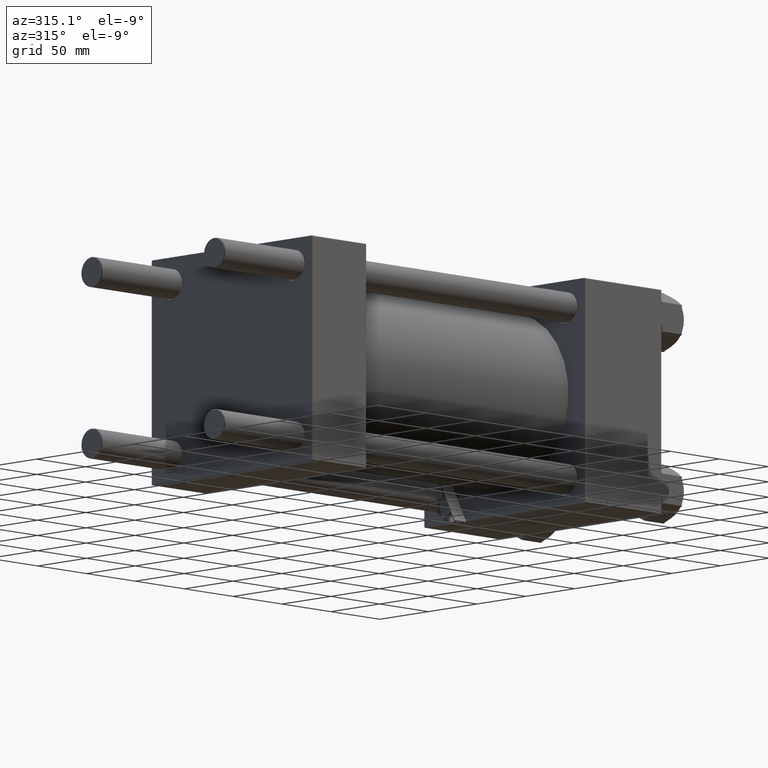
[diagram: clean part render]
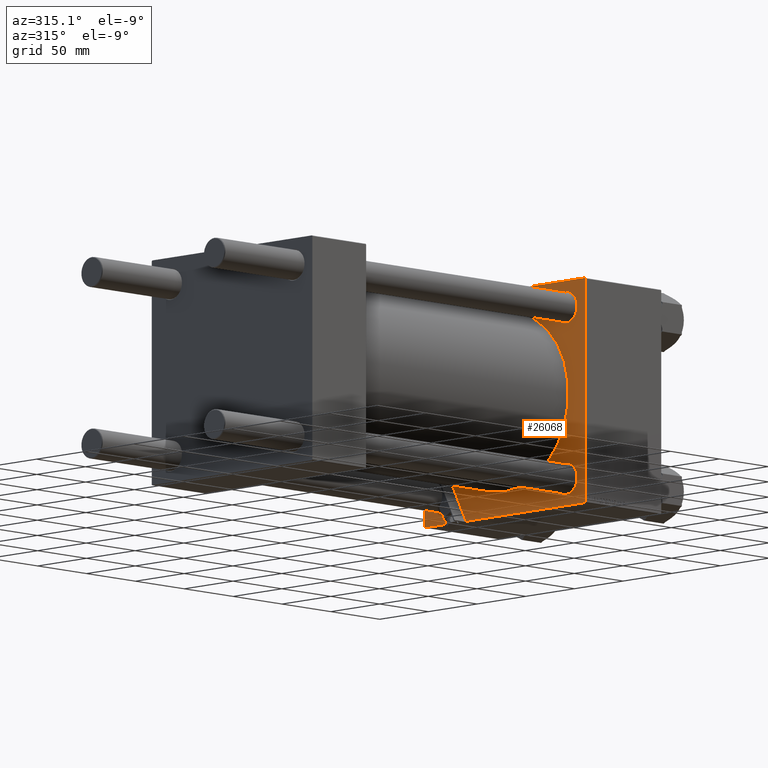
[diagram: same view with one face highlighted and labeled with its STEP entity id]
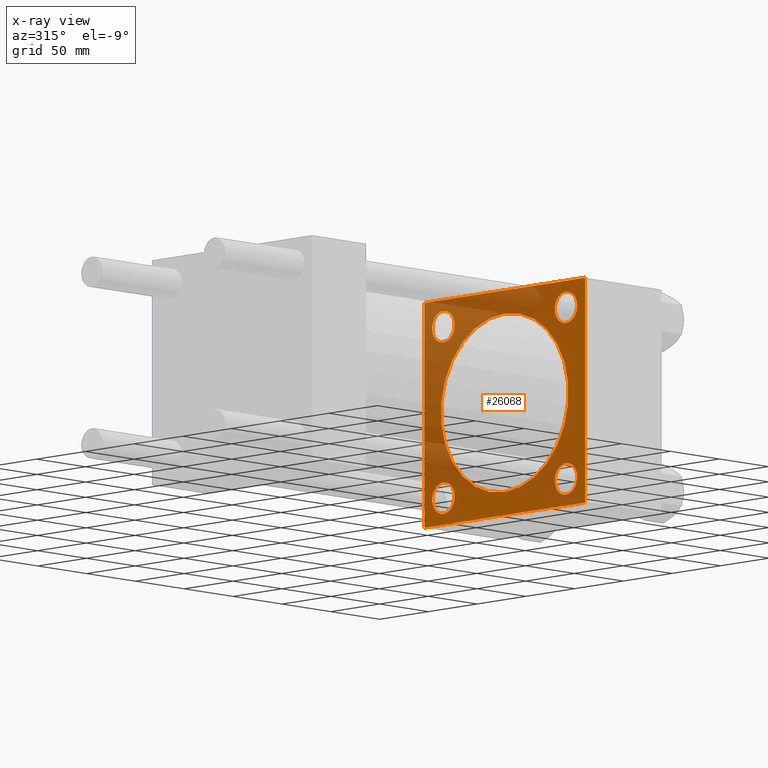
[diagram: x-ray of the same camera — body ghosted, the highlighted face saturated]
A machine part, auxiliary view. The second image highlights one B-rep face of the part: STEP entity #26068.
The next image is the same camera in x-ray: the body ghosted, the highlighted face saturated — about 42% of this face is hidden behind the body in this view.
In plain terms, the highlighted planar face has unit normal (-1, 0, 0).
Its self-contained STEP definition (entity closure, byte-faithful):
#691 = ORIENTED_EDGE ( 'NONE', *, *, #24537, .T. ) ;
#708 = DIRECTION ( 'NONE',  ( 0.000000000000000000, 0.000000000000000000, 1.000000000000000000 ) ) ;
#763 = AXIS2_PLACEMENT_3D ( 'NONE', #25018, #41656, #49210 ) ;
#844 = CARTESIAN_POINT ( 'NONE',  ( 279.0000000000000000, 62.95000000000000284, 62.95000000000000284 ) ) ;
#1361 = EDGE_CURVE ( 'NONE', #11330, #50882, #49885, .T. ) ;
#1504 = VERTEX_POINT ( 'NONE', #16476 ) ;
#1809 = DIRECTION ( 'NONE',  ( 0.000000000000000000, -1.000000000000000000, -1.682156097916904081E-16 ) ) ;
#1831 = ORIENTED_EDGE ( 'NONE', *, *, #12929, .T. ) ;
#2351 = DIRECTION ( 'NONE',  ( 1.000000000000000000, 0.000000000000000000, -0.000000000000000000 ) ) ;
#2711 = DIRECTION ( 'NONE',  ( 1.000000000000000000, 0.000000000000000000, -0.000000000000000000 ) ) ;
#2964 = CARTESIAN_POINT ( 'NONE',  ( 279.0000000000000000, 62.95000000000000284, 62.95000000000000284 ) ) ;
#3255 = VERTEX_POINT ( 'NONE', #5039 ) ;
#3263 = CIRCLE ( 'NONE', #763, 11.50000000000001066 ) ;
#3282 = CARTESIAN_POINT ( 'NONE',  ( 279.0000000000000000, 0.000000000000000000, 65.50000000000001421 ) ) ;
#3416 = CARTESIAN_POINT ( 'NONE',  ( 279.0000000000000000, -81.99999999999998579, -82.50000000000002842 ) ) ;
#3629 = ORIENTED_EDGE ( 'NONE', *, *, #35198, .T. ) ;
#3731 = FACE_BOUND ( 'NONE', #9669, .T. ) ;
#4278 = EDGE_LOOP ( 'NONE', ( #20706, #43881, #17892, #9269, #13678, #1831, #44053, #17026 ) ) ;
#5039 = CARTESIAN_POINT ( 'NONE',  ( 279.0000000000000000, -81.99999999999995737, 82.49999999999997158 ) ) ;
#5078 = CARTESIAN_POINT ( 'NONE',  ( 279.0000000000000000, 82.50000000000001421, 82.00000000000000000 ) ) ;
#5953 = DIRECTION ( 'NONE',  ( 1.000000000000000000, 0.000000000000000000, 0.000000000000000000 ) ) ;
#6094 = VECTOR ( 'NONE', #21533, 1000.000000000000000 ) ;
#6279 = EDGE_LOOP ( 'NONE', ( #691, #18690 ) ) ;
#6826 = DIRECTION ( 'NONE',  ( 1.000000000000000000, 0.000000000000000000, -0.000000000000000000 ) ) ;
#7055 = CARTESIAN_POINT ( 'NONE',  ( 279.0000000000000000, -62.94999999999998153, 74.45000000000003126 ) ) ;
#7365 = PLANE ( 'NONE',  #30069 ) ;
#7705 = CARTESIAN_POINT ( 'NONE',  ( 279.0000000000000000, -82.49999999999997158, 81.99999999999997158 ) ) ;
#8414 = AXIS2_PLACEMENT_3D ( 'NONE', #14183, #21721, #29266 ) ;
#8683 = VERTEX_POINT ( 'NONE', #7055 ) ;
#8879 = AXIS2_PLACEMENT_3D ( 'NONE', #33553, #2351, #29127 ) ;
#9135 = CIRCLE ( 'NONE', #49007, 65.50000000000001421 ) ;
#9269 = ORIENTED_EDGE ( 'NONE', *, *, #40058, .T. ) ;
#9296 = AXIS2_PLACEMENT_3D ( 'NONE', #36322, #36575, #708 ) ;
#9669 = EDGE_LOOP ( 'NONE', ( #3629, #37451 ) ) ;
#10016 = VERTEX_POINT ( 'NONE', #45888 ) ;
#10395 = DIRECTION ( 'NONE',  ( 0.000000000000000000, 0.000000000000000000, -1.000000000000000000 ) ) ;
#10636 = AXIS2_PLACEMENT_3D ( 'NONE', #25134, #25641, #33470 ) ;
#11330 = VERTEX_POINT ( 'NONE', #14378 ) ;
#11422 = EDGE_CURVE ( 'NONE', #31265, #48453, #12528, .T. ) ;
#12239 = VERTEX_POINT ( 'NONE', #3282 ) ;
#12528 = LINE ( 'NONE', #44237, #38015 ) ;
#12929 = EDGE_CURVE ( 'NONE', #25437, #33359, #25086, .T. ) ;
#13527 = AXIS2_PLACEMENT_3D ( 'NONE', #51018, #6826, #22671 ) ;
#13678 = ORIENTED_EDGE ( 'NONE', *, *, #43233, .F. ) ;
#13748 = EDGE_CURVE ( 'NONE', #16894, #31265, #27731, .T. ) ;
#13757 = DIRECTION ( 'NONE',  ( 0.000000000000000000, 0.000000000000000000, -1.000000000000000000 ) ) ;
#14183 = CARTESIAN_POINT ( 'NONE',  ( 279.0000000000000000, -62.94999999999998153, 62.95000000000001705 ) ) ;
#14231 = DIRECTION ( 'NONE',  ( 1.000000000000000000, 0.000000000000000000, -0.000000000000000000 ) ) ;
#14378 = CARTESIAN_POINT ( 'NONE',  ( 279.0000000000000000, -62.94999999999998153, -51.45000000000000995 ) ) ;
#15008 = AXIS2_PLACEMENT_3D ( 'NONE', #25919, #14231, #25401 ) ;
#15431 = FACE_BOUND ( 'NONE', #6279, .T. ) ;
#15450 = DIRECTION ( 'NONE',  ( -0.000000000000000000, -0.7071067811865474617, -0.7071067811865474617 ) ) ;
#15473 = VECTOR ( 'NONE', #37242, 999.9999999999998863 ) ;
#15783 = CARTESIAN_POINT ( 'NONE',  ( 279.0000000000000000, 82.50000000000001421, -82.50000000000002842 ) ) ;
#16208 = ORIENTED_EDGE ( 'NONE', *, *, #42689, .T. ) ;
#16476 = CARTESIAN_POINT ( 'NONE',  ( 279.0000000000000000, 62.95000000000000284, -51.44999999999999574 ) ) ;
#16676 = VECTOR ( 'NONE', #15450, 1000.000000000000114 ) ;
#16714 = CIRCLE ( 'NONE', #8414, 11.50000000000001066 ) ;
#16894 = VERTEX_POINT ( 'NONE', #20242 ) ;
#17026 = ORIENTED_EDGE ( 'NONE', *, *, #23022, .T. ) ;
#17892 = ORIENTED_EDGE ( 'NONE', *, *, #29353, .F. ) ;
#17984 = LINE ( 'NONE', #32831, #15473 ) ;
#18690 = ORIENTED_EDGE ( 'NONE', *, *, #48389, .T. ) ;
#18699 = LINE ( 'NONE', #38983, #29581 ) ;
#19577 = FACE_BOUND ( 'NONE', #22570, .T. ) ;
#19820 = DIRECTION ( 'NONE',  ( 0.000000000000000000, -0.7071067811865574537, 0.7071067811865376918 ) ) ;
#19844 = VECTOR ( 'NONE', #32144, 1000.000000000000000 ) ;
#20242 = CARTESIAN_POINT ( 'NONE',  ( 279.0000000000000000, 82.00000000000001421, -82.50000000000002842 ) ) ;
#20706 = ORIENTED_EDGE ( 'NONE', *, *, #13748, .T. ) ;
#20939 = CARTESIAN_POINT ( 'NONE',  ( 279.0000000000000000, 82.25000000000000000, 82.25000000000000000 ) ) ;
#20974 = CIRCLE ( 'NONE', #13527, 11.50000000000001066 ) ;
#21533 = DIRECTION ( 'NONE',  ( 0.000000000000000000, -1.682156097916903834E-16, -1.000000000000000000 ) ) ;
#21721 = DIRECTION ( 'NONE',  ( 1.000000000000000000, 0.000000000000000000, -0.000000000000000000 ) ) ;
#22132 = DIRECTION ( 'NONE',  ( 0.000000000000000000, 0.7071067811865474617, -0.7071067811865474617 ) ) ;
#22302 = DIRECTION ( 'NONE',  ( 1.000000000000000000, 0.000000000000000000, -0.000000000000000000 ) ) ;
#22433 = DIRECTION ( 'NONE',  ( 0.000000000000000000, 0.000000000000000000, 1.000000000000000000 ) ) ;
#22570 = EDGE_LOOP ( 'NONE', ( #16208, #28104 ) ) ;
#22650 = VERTEX_POINT ( 'NONE', #42013 ) ;
#22671 = DIRECTION ( 'NONE',  ( 0.000000000000000000, 0.000000000000000000, 1.000000000000000000 ) ) ;
#23022 = EDGE_CURVE ( 'NONE', #10016, #16894, #23741, .T. ) ;
#23709 = EDGE_CURVE ( 'NONE', #45834, #8683, #16714, .T. ) ;
#23741 = LINE ( 'NONE', #26618, #16676 ) ;
#24537 = EDGE_CURVE ( 'NONE', #1504, #49791, #38353, .T. ) ;
#25018 = CARTESIAN_POINT ( 'NONE',  ( 279.0000000000000000, 62.95000000000000284, -62.95000000000000284 ) ) ;
#25086 = LINE ( 'NONE', #20939, #47198 ) ;
#25134 = CARTESIAN_POINT ( 'NONE',  ( 279.0000000000000000, 0.000000000000000000, 0.000000000000000000 ) ) ;
#25167 = CARTESIAN_POINT ( 'NONE',  ( 279.0000000000000000, -82.49999999999997158, 82.49999999999997158 ) ) ;
#25401 = DIRECTION ( 'NONE',  ( 0.000000000000000000, 0.000000000000000000, 1.000000000000000000 ) ) ;
#25437 = VERTEX_POINT ( 'NONE', #46284 ) ;
#25641 = DIRECTION ( 'NONE',  ( 1.000000000000000000, 0.000000000000000000, 0.000000000000000000 ) ) ;
#25919 = CARTESIAN_POINT ( 'NONE',  ( 279.0000000000000000, -62.94999999999998153, -62.95000000000001705 ) ) ;
#26068 = ADVANCED_FACE ( 'NONE', ( #19577, #3731, #15431, #47137, #51296, #46626 ), #7365, .T. ) ;
#26108 = EDGE_LOOP ( 'NONE', ( #43188, #45490 ) ) ;
#26618 = CARTESIAN_POINT ( 'NONE',  ( 279.0000000000000000, 82.25000000000001421, -82.25000000000001421 ) ) ;
#27026 = EDGE_CURVE ( 'NONE', #50882, #11330, #20974, .T. ) ;
#27371 = DIRECTION ( 'NONE',  ( -1.000000000000000000, -0.000000000000000000, 0.000000000000000000 ) ) ;
#27731 = LINE ( 'NONE', #15783, #19844 ) ;
#28104 = ORIENTED_EDGE ( 'NONE', *, *, #23709, .T. ) ;
#29127 = DIRECTION ( 'NONE',  ( 0.000000000000000000, 0.000000000000000000, 1.000000000000000000 ) ) ;
#29266 = DIRECTION ( 'NONE',  ( 0.000000000000000000, 0.000000000000000000, 1.000000000000000000 ) ) ;
#29345 = CARTESIAN_POINT ( 'NONE',  ( 279.0000000000000000, 82.50000000000001421, 82.50000000000000000 ) ) ;
#29353 = EDGE_CURVE ( 'NONE', #51287, #48453, #40525, .T. ) ;
#29581 = VECTOR ( 'NONE', #10395, 1000.000000000000000 ) ;
#30069 = AXIS2_PLACEMENT_3D ( 'NONE', #51042, #27371, #22433 ) ;
#30119 = DIRECTION ( 'NONE',  ( 0.000000000000000000, 0.000000000000000000, 1.000000000000000000 ) ) ;
#30369 = AXIS2_PLACEMENT_3D ( 'NONE', #844, #22302, #30119 ) ;
#31265 = VERTEX_POINT ( 'NONE', #3416 ) ;
#31338 = VECTOR ( 'NONE', #1809, 1000.000000000000000 ) ;
#31636 = ORIENTED_EDGE ( 'NONE', *, *, #1361, .T. ) ;
#32144 = DIRECTION ( 'NONE',  ( 0.000000000000000000, -1.000000000000000000, 0.000000000000000000 ) ) ;
#32266 = CIRCLE ( 'NONE', #48039, 11.50000000000001066 ) ;
#32611 = EDGE_LOOP ( 'NONE', ( #31636, #48315 ) ) ;
#32831 = CARTESIAN_POINT ( 'NONE',  ( 279.0000000000000000, -82.24999999999882050, 82.25000000000110845 ) ) ;
#33359 = VERTEX_POINT ( 'NONE', #5078 ) ;
#33470 = DIRECTION ( 'NONE',  ( 0.000000000000000000, 0.000000000000000000, -1.000000000000000000 ) ) ;
#33553 = CARTESIAN_POINT ( 'NONE',  ( 279.0000000000000000, -62.94999999999998153, 62.95000000000001705 ) ) ;
#35198 = EDGE_CURVE ( 'NONE', #42975, #22650, #40316, .T. ) ;
#35203 = DIRECTION ( 'NONE',  ( 0.000000000000000000, 0.000000000000000000, 1.000000000000000000 ) ) ;
#35610 = CARTESIAN_POINT ( 'NONE',  ( 279.0000000000000000, 62.95000000000000284, 74.45000000000001705 ) ) ;
#36285 = CIRCLE ( 'NONE', #8879, 11.50000000000001066 ) ;
#36322 = CARTESIAN_POINT ( 'NONE',  ( 279.0000000000000000, 62.95000000000000284, -62.95000000000000284 ) ) ;
#36575 = DIRECTION ( 'NONE',  ( 1.000000000000000000, 0.000000000000000000, -0.000000000000000000 ) ) ;
#37242 = DIRECTION ( 'NONE',  ( -0.000000000000000000, 0.7071067811865574537, 0.7071067811865376918 ) ) ;
#37451 = ORIENTED_EDGE ( 'NONE', *, *, #46560, .T. ) ;
#37610 = CARTESIAN_POINT ( 'NONE',  ( 279.0000000000000000, -62.94999999999998153, -74.45000000000003126 ) ) ;
#37673 = LINE ( 'NONE', #29345, #31338 ) ;
#37943 = CARTESIAN_POINT ( 'NONE',  ( 279.0000000000000000, 8.021436534415166404E-15, -65.50000000000001421 ) ) ;
#38015 = VECTOR ( 'NONE', #19820, 999.9999999999998863 ) ;
#38353 = CIRCLE ( 'NONE', #9296, 11.50000000000001066 ) ;
#38983 = CARTESIAN_POINT ( 'NONE',  ( 279.0000000000000000, 82.50000000000001421, 82.50000000000000000 ) ) ;
#40058 = EDGE_CURVE ( 'NONE', #51287, #3255, #17984, .T. ) ;
#40316 = CIRCLE ( 'NONE', #30369, 11.50000000000001066 ) ;
#40525 = LINE ( 'NONE', #25167, #6094 ) ;
#41333 = EDGE_CURVE ( 'NONE', #33359, #10016, #18699, .T. ) ;
#41656 = DIRECTION ( 'NONE',  ( 1.000000000000000000, 0.000000000000000000, -0.000000000000000000 ) ) ;
#42013 = CARTESIAN_POINT ( 'NONE',  ( 279.0000000000000000, 62.95000000000000284, 51.44999999999999574 ) ) ;
#42427 = CARTESIAN_POINT ( 'NONE',  ( 279.0000000000000000, -82.50000000000000000, -82.00000000000002842 ) ) ;
#42689 = EDGE_CURVE ( 'NONE', #8683, #45834, #36285, .T. ) ;
#42975 = VERTEX_POINT ( 'NONE', #35610 ) ;
#43188 = ORIENTED_EDGE ( 'NONE', *, *, #50558, .T. ) ;
#43233 = EDGE_CURVE ( 'NONE', #25437, #3255, #37673, .T. ) ;
#43881 = ORIENTED_EDGE ( 'NONE', *, *, #11422, .T. ) ;
#44053 = ORIENTED_EDGE ( 'NONE', *, *, #41333, .T. ) ;
#44237 = CARTESIAN_POINT ( 'NONE',  ( 279.0000000000000000, -82.24999999999886313, -82.25000000000115108 ) ) ;
#44616 = EDGE_CURVE ( 'NONE', #47961, #12239, #49638, .T. ) ;
#44881 = CARTESIAN_POINT ( 'NONE',  ( 279.0000000000000000, 62.95000000000000284, -74.45000000000001705 ) ) ;
#45490 = ORIENTED_EDGE ( 'NONE', *, *, #44616, .T. ) ;
#45834 = VERTEX_POINT ( 'NONE', #46127 ) ;
#45888 = CARTESIAN_POINT ( 'NONE',  ( 279.0000000000000000, 82.50000000000001421, -82.00000000000002842 ) ) ;
#46127 = CARTESIAN_POINT ( 'NONE',  ( 279.0000000000000000, -62.94999999999998153, 51.45000000000000995 ) ) ;
#46284 = CARTESIAN_POINT ( 'NONE',  ( 279.0000000000000000, 82.00000000000001421, 82.50000000000000000 ) ) ;
#46560 = EDGE_CURVE ( 'NONE', #22650, #42975, #32266, .T. ) ;
#46626 = FACE_OUTER_BOUND ( 'NONE', #4278, .T. ) ;
#47137 = FACE_BOUND ( 'NONE', #32611, .T. ) ;
#47198 = VECTOR ( 'NONE', #22132, 1000.000000000000114 ) ;
#47961 = VERTEX_POINT ( 'NONE', #37943 ) ;
#48039 = AXIS2_PLACEMENT_3D ( 'NONE', #2964, #2711, #35203 ) ;
#48315 = ORIENTED_EDGE ( 'NONE', *, *, #27026, .T. ) ;
#48389 = EDGE_CURVE ( 'NONE', #49791, #1504, #3263, .T. ) ;
#48453 = VERTEX_POINT ( 'NONE', #42427 ) ;
#49007 = AXIS2_PLACEMENT_3D ( 'NONE', #49374, #5953, #13757 ) ;
#49210 = DIRECTION ( 'NONE',  ( 0.000000000000000000, 0.000000000000000000, 1.000000000000000000 ) ) ;
#49374 = CARTESIAN_POINT ( 'NONE',  ( 279.0000000000000000, 0.000000000000000000, 0.000000000000000000 ) ) ;
#49638 = CIRCLE ( 'NONE', #10636, 65.50000000000001421 ) ;
#49791 = VERTEX_POINT ( 'NONE', #44881 ) ;
#49885 = CIRCLE ( 'NONE', #15008, 11.50000000000001066 ) ;
#50558 = EDGE_CURVE ( 'NONE', #12239, #47961, #9135, .T. ) ;
#50882 = VERTEX_POINT ( 'NONE', #37610 ) ;
#51018 = CARTESIAN_POINT ( 'NONE',  ( 279.0000000000000000, -62.94999999999998153, -62.95000000000001705 ) ) ;
#51042 = CARTESIAN_POINT ( 'NONE',  ( 279.0000000000000000, 0.000000000000000000, 0.000000000000000000 ) ) ;
#51287 = VERTEX_POINT ( 'NONE', #7705 ) ;
#51296 = FACE_BOUND ( 'NONE', #26108, .T. ) ;